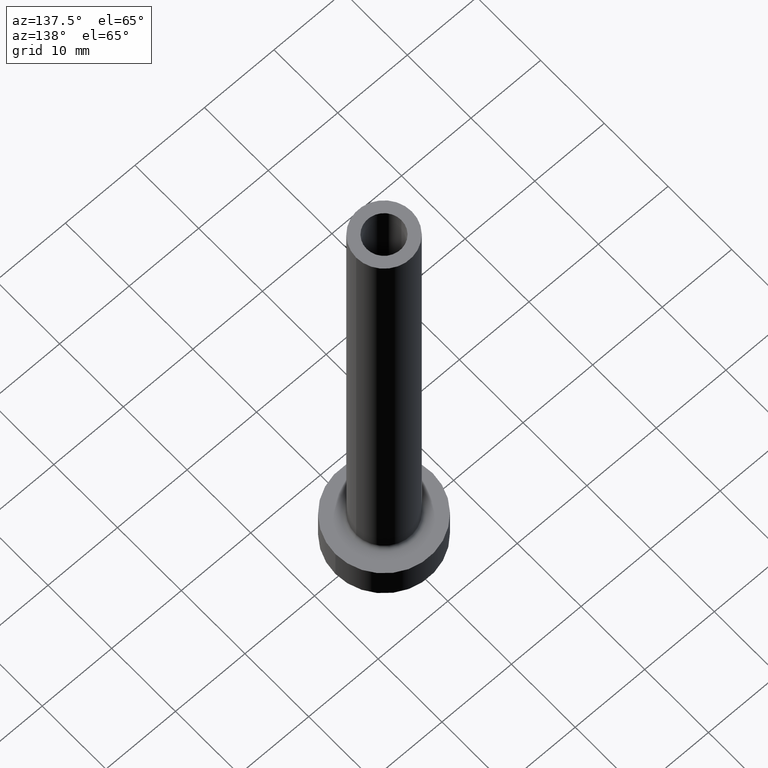
[diagram: clean part render]
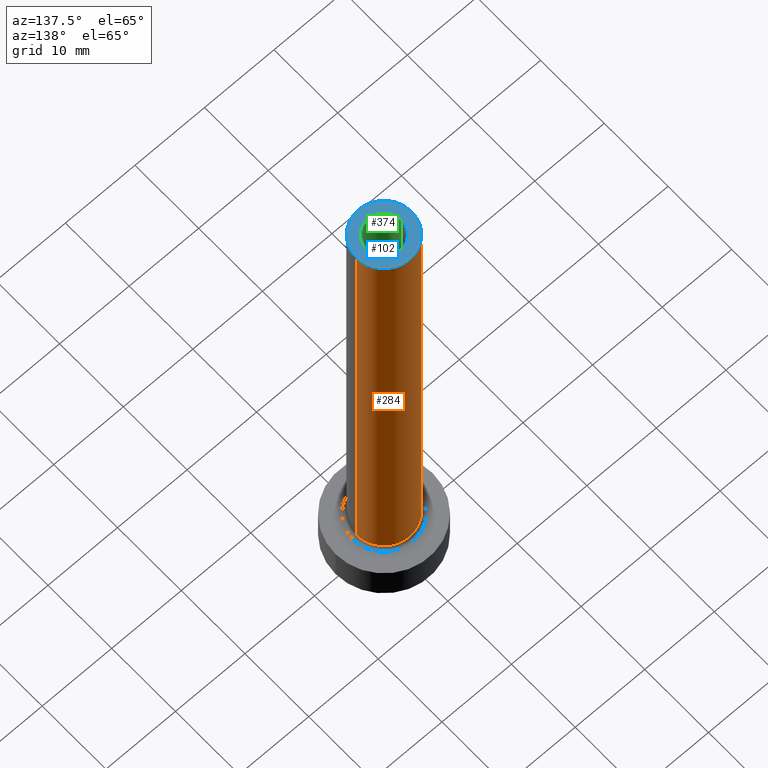
[diagram: same view with three faces highlighted in distinct colors, each labeled with its STEP entity id]
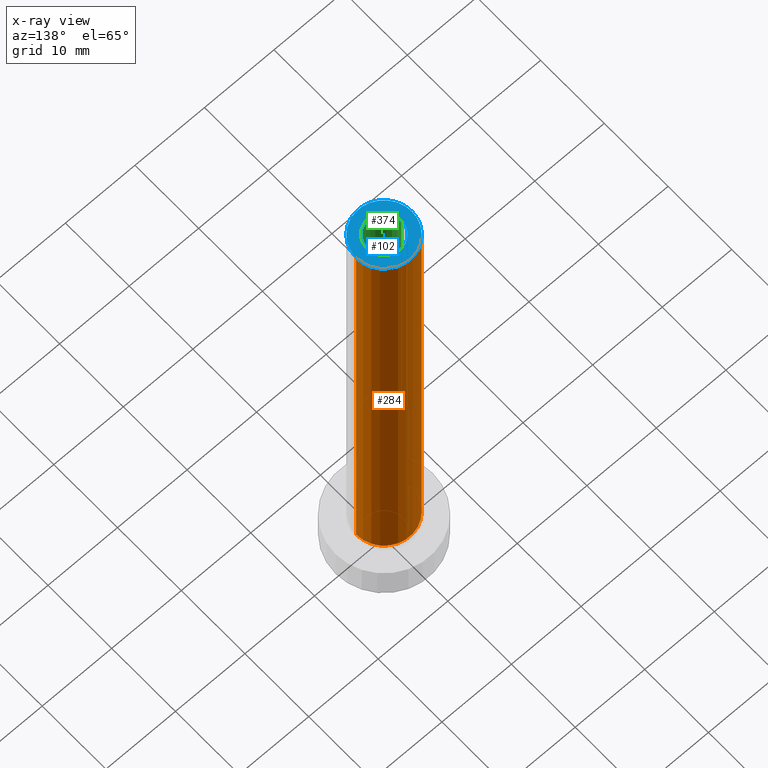
[diagram: x-ray of the same camera — body ghosted, the three highlighted faces saturated]
A machine part, auxiliary view with three faces highlighted in distinct colors.
The next image is the same camera in x-ray (body ghosted, the three faces saturated) — at least one of them is partly hidden behind the body in this view.
Their STEP definitions:

[orange] entity #284 — the highlighted cylindrical surface (partial cylindrical patch) has radius 4 mm, axis along (-0, -0, -1).
#2 = CARTESIAN_POINT ( 'NONE',  ( 4.000000000000000000, 4.898587196589412829E-16, 75.00000000000001421 ) ) ;
#6 = VECTOR ( 'NONE', #14, 1000.000000000000000 ) ;
#14 = DIRECTION ( 'NONE',  ( -0.000000000000000000, -0.000000000000000000, -1.000000000000000000 ) ) ;
#27 = CARTESIAN_POINT ( 'NONE',  ( 0.000000000000000000, 0.000000000000000000, 5.500000000000005329 ) ) ;
#31 = EDGE_CURVE ( 'NONE', #287, #146, #232, .T. ) ;
#36 = CARTESIAN_POINT ( 'NONE',  ( 4.000000000000000000, 4.898587196589412829E-16, 5.500000000000005329 ) ) ;
#61 = DIRECTION ( 'NONE',  ( 0.000000000000000000, 0.000000000000000000, 1.000000000000000000 ) ) ;
#91 = EDGE_LOOP ( 'NONE', ( #113, #230, #128, #411 ) ) ;
#113 = ORIENTED_EDGE ( 'NONE', *, *, #402, .F. ) ;
#114 = DIRECTION ( 'NONE',  ( 0.000000000000000000, 0.000000000000000000, 1.000000000000000000 ) ) ;
#125 = FACE_OUTER_BOUND ( 'NONE', #91, .T. ) ;
#128 = ORIENTED_EDGE ( 'NONE', *, *, #358, .T. ) ;
#136 = DIRECTION ( 'NONE',  ( -1.000000000000000000, 0.000000000000000000, 0.000000000000000000 ) ) ;
#146 = VERTEX_POINT ( 'NONE', #290 ) ;
#169 = DIRECTION ( 'NONE',  ( 1.000000000000000000, 0.000000000000000000, 0.000000000000000000 ) ) ;
#199 = DIRECTION ( 'NONE',  ( -0.000000000000000000, -0.000000000000000000, -1.000000000000000000 ) ) ;
#209 = AXIS2_PLACEMENT_3D ( 'NONE', #217, #114, #367 ) ;
#217 = CARTESIAN_POINT ( 'NONE',  ( 0.000000000000000000, 0.000000000000000000, 75.00000000000001421 ) ) ;
#218 = CIRCLE ( 'NONE', #209, 4.000000000000000000 ) ;
#226 = VERTEX_POINT ( 'NONE', #2 ) ;
#230 = ORIENTED_EDGE ( 'NONE', *, *, #254, .T. ) ;
#232 = LINE ( 'NONE', #412, #6 ) ;
#239 = VERTEX_POINT ( 'NONE', #36 ) ;
#254 = EDGE_CURVE ( 'NONE', #226, #239, #359, .T. ) ;
#266 = CYLINDRICAL_SURFACE ( 'NONE', #375, 4.000000000000000000 ) ;
#278 = AXIS2_PLACEMENT_3D ( 'NONE', #27, #61, #169 ) ;
#284 = ADVANCED_FACE ( 'NONE', ( #125 ), #266, .T. ) ;
#287 = VERTEX_POINT ( 'NONE', #309 ) ;
#290 = CARTESIAN_POINT ( 'NONE',  ( -4.000000000000000000, 0.000000000000000000, 5.500000000000005329 ) ) ;
#309 = CARTESIAN_POINT ( 'NONE',  ( -4.000000000000000000, 0.000000000000000000, 75.00000000000001421 ) ) ;
#319 = CIRCLE ( 'NONE', #278, 4.000000000000000000 ) ;
#335 = DIRECTION ( 'NONE',  ( -0.000000000000000000, -0.000000000000000000, -1.000000000000000000 ) ) ;
#358 = EDGE_CURVE ( 'NONE', #239, #146, #319, .T. ) ;
#359 = LINE ( 'NONE', #400, #406 ) ;
#367 = DIRECTION ( 'NONE',  ( 1.000000000000000000, 0.000000000000000000, 0.000000000000000000 ) ) ;
#375 = AXIS2_PLACEMENT_3D ( 'NONE', #377, #199, #136 ) ;
#377 = CARTESIAN_POINT ( 'NONE',  ( 0.000000000000000000, 0.000000000000000000, 75.00000000000001421 ) ) ;
#400 = CARTESIAN_POINT ( 'NONE',  ( 4.000000000000000000, 4.898587196589412829E-16, 75.00000000000001421 ) ) ;
#402 = EDGE_CURVE ( 'NONE', #226, #287, #218, .T. ) ;
#406 = VECTOR ( 'NONE', #335, 1000.000000000000000 ) ;
#411 = ORIENTED_EDGE ( 'NONE', *, *, #31, .F. ) ;
#412 = CARTESIAN_POINT ( 'NONE',  ( -4.000000000000000000, 0.000000000000000000, 75.00000000000001421 ) ) ;

[blue] entity #102 — the highlighted planar face has unit normal (0, 0, 1).
#2 = CARTESIAN_POINT ( 'NONE',  ( 4.000000000000000000, 4.898587196589412829E-16, 75.00000000000001421 ) ) ;
#12 = ORIENTED_EDGE ( 'NONE', *, *, #212, .F. ) ;
#46 = DIRECTION ( 'NONE',  ( 1.000000000000000000, 0.000000000000000000, -0.000000000000000000 ) ) ;
#63 = EDGE_CURVE ( 'NONE', #304, #342, #195, .T. ) ;
#71 = ORIENTED_EDGE ( 'NONE', *, *, #402, .T. ) ;
#100 = EDGE_LOOP ( 'NONE', ( #348, #71 ) ) ;
#102 = ADVANCED_FACE ( 'NONE', ( #250, #392 ), #208, .T. ) ;
#112 = ORIENTED_EDGE ( 'NONE', *, *, #63, .F. ) ;
#114 = DIRECTION ( 'NONE',  ( 0.000000000000000000, 0.000000000000000000, 1.000000000000000000 ) ) ;
#151 = CIRCLE ( 'NONE', #423, 2.500000000000000000 ) ;
#156 = DIRECTION ( 'NONE',  ( 0.000000000000000000, 0.000000000000000000, 1.000000000000000000 ) ) ;
#172 = AXIS2_PLACEMENT_3D ( 'NONE', #313, #241, #383 ) ;
#189 = AXIS2_PLACEMENT_3D ( 'NONE', #373, #156, #371 ) ;
#195 = CIRCLE ( 'NONE', #172, 2.500000000000000000 ) ;
#208 = PLANE ( 'NONE',  #449 ) ;
#209 = AXIS2_PLACEMENT_3D ( 'NONE', #217, #114, #367 ) ;
#212 = EDGE_CURVE ( 'NONE', #342, #304, #151, .T. ) ;
#217 = CARTESIAN_POINT ( 'NONE',  ( 0.000000000000000000, 0.000000000000000000, 75.00000000000001421 ) ) ;
#218 = CIRCLE ( 'NONE', #209, 4.000000000000000000 ) ;
#225 = CARTESIAN_POINT ( 'NONE',  ( -2.500000000000000000, 0.000000000000000000, 75.00000000000001421 ) ) ;
#226 = VERTEX_POINT ( 'NONE', #2 ) ;
#237 = CIRCLE ( 'NONE', #189, 4.000000000000000000 ) ;
#241 = DIRECTION ( 'NONE',  ( 0.000000000000000000, 0.000000000000000000, 1.000000000000000000 ) ) ;
#243 = DIRECTION ( 'NONE',  ( 1.000000000000000000, 0.000000000000000000, 0.000000000000000000 ) ) ;
#249 = CARTESIAN_POINT ( 'NONE',  ( 0.000000000000000000, 0.000000000000000000, 75.00000000000001421 ) ) ;
#250 = FACE_BOUND ( 'NONE', #416, .T. ) ;
#270 = EDGE_CURVE ( 'NONE', #287, #226, #237, .T. ) ;
#287 = VERTEX_POINT ( 'NONE', #309 ) ;
#304 = VERTEX_POINT ( 'NONE', #225 ) ;
#309 = CARTESIAN_POINT ( 'NONE',  ( -4.000000000000000000, 0.000000000000000000, 75.00000000000001421 ) ) ;
#313 = CARTESIAN_POINT ( 'NONE',  ( 0.000000000000000000, 0.000000000000000000, 75.00000000000001421 ) ) ;
#342 = VERTEX_POINT ( 'NONE', #384 ) ;
#348 = ORIENTED_EDGE ( 'NONE', *, *, #270, .T. ) ;
#353 = CARTESIAN_POINT ( 'NONE',  ( 0.000000000000000000, 0.000000000000000000, 75.00000000000001421 ) ) ;
#367 = DIRECTION ( 'NONE',  ( 1.000000000000000000, 0.000000000000000000, 0.000000000000000000 ) ) ;
#371 = DIRECTION ( 'NONE',  ( 1.000000000000000000, 0.000000000000000000, 0.000000000000000000 ) ) ;
#373 = CARTESIAN_POINT ( 'NONE',  ( 0.000000000000000000, 0.000000000000000000, 75.00000000000001421 ) ) ;
#383 = DIRECTION ( 'NONE',  ( 1.000000000000000000, 0.000000000000000000, 0.000000000000000000 ) ) ;
#384 = CARTESIAN_POINT ( 'NONE',  ( 2.500000000000000000, 3.061616997868382648E-16, 75.00000000000001421 ) ) ;
#392 = FACE_OUTER_BOUND ( 'NONE', #100, .T. ) ;
#402 = EDGE_CURVE ( 'NONE', #226, #287, #218, .T. ) ;
#416 = EDGE_LOOP ( 'NONE', ( #112, #12 ) ) ;
#419 = DIRECTION ( 'NONE',  ( 0.000000000000000000, 0.000000000000000000, 1.000000000000000000 ) ) ;
#423 = AXIS2_PLACEMENT_3D ( 'NONE', #249, #419, #243 ) ;
#449 = AXIS2_PLACEMENT_3D ( 'NONE', #353, #459, #46 ) ;
#459 = DIRECTION ( 'NONE',  ( 0.000000000000000000, 0.000000000000000000, 1.000000000000000000 ) ) ;

[green] entity #374 — the highlighted cylindrical surface (edge-blend (fillet) strip) has radius 2.5 mm, axis along (0, 0, -1).
#15 = EDGE_LOOP ( 'NONE', ( #174, #214, #344, #30 ) ) ;
#30 = ORIENTED_EDGE ( 'NONE', *, *, #257, .F. ) ;
#52 = AXIS2_PLACEMENT_3D ( 'NONE', #285, #425, #111 ) ;
#63 = EDGE_CURVE ( 'NONE', #304, #342, #195, .T. ) ;
#83 = DIRECTION ( 'NONE',  ( -1.000000000000000000, 0.000000000000000000, 0.000000000000000000 ) ) ;
#98 = EDGE_CURVE ( 'NONE', #318, #210, #187, .T. ) ;
#111 = DIRECTION ( 'NONE',  ( 1.000000000000000000, 0.000000000000000000, 0.000000000000000000 ) ) ;
#129 = EDGE_CURVE ( 'NONE', #342, #210, #329, .T. ) ;
#150 = DIRECTION ( 'NONE',  ( 0.000000000000000000, 0.000000000000000000, -1.000000000000000000 ) ) ;
#152 = CARTESIAN_POINT ( 'NONE',  ( 0.000000000000000000, 0.000000000000000000, 75.00000000000001421 ) ) ;
#160 = CARTESIAN_POINT ( 'NONE',  ( -2.500000000000000000, 0.000000000000000000, 30.00000000000001421 ) ) ;
#172 = AXIS2_PLACEMENT_3D ( 'NONE', #313, #241, #383 ) ;
#174 = ORIENTED_EDGE ( 'NONE', *, *, #63, .T. ) ;
#184 = LINE ( 'NONE', #327, #435 ) ;
#187 = CIRCLE ( 'NONE', #52, 2.500000000000000000 ) ;
#195 = CIRCLE ( 'NONE', #172, 2.500000000000000000 ) ;
#210 = VERTEX_POINT ( 'NONE', #286 ) ;
#213 = CARTESIAN_POINT ( 'NONE',  ( 2.500000000000000000, 3.061616997868382648E-16, 75.00000000000001421 ) ) ;
#214 = ORIENTED_EDGE ( 'NONE', *, *, #129, .T. ) ;
#225 = CARTESIAN_POINT ( 'NONE',  ( -2.500000000000000000, 0.000000000000000000, 75.00000000000001421 ) ) ;
#227 = VECTOR ( 'NONE', #361, 1000.000000000000000 ) ;
#241 = DIRECTION ( 'NONE',  ( 0.000000000000000000, 0.000000000000000000, 1.000000000000000000 ) ) ;
#257 = EDGE_CURVE ( 'NONE', #304, #318, #184, .T. ) ;
#260 = DIRECTION ( 'NONE',  ( 0.000000000000000000, 0.000000000000000000, -1.000000000000000000 ) ) ;
#285 = CARTESIAN_POINT ( 'NONE',  ( 0.000000000000000000, 0.000000000000000000, 30.00000000000001421 ) ) ;
#286 = CARTESIAN_POINT ( 'NONE',  ( 2.500000000000000000, 3.061616997868382648E-16, 30.00000000000001421 ) ) ;
#304 = VERTEX_POINT ( 'NONE', #225 ) ;
#313 = CARTESIAN_POINT ( 'NONE',  ( 0.000000000000000000, 0.000000000000000000, 75.00000000000001421 ) ) ;
#318 = VERTEX_POINT ( 'NONE', #160 ) ;
#325 = CYLINDRICAL_SURFACE ( 'NONE', #417, 2.500000000000000000 ) ;
#327 = CARTESIAN_POINT ( 'NONE',  ( -2.500000000000000000, 0.000000000000000000, 75.00000000000001421 ) ) ;
#329 = LINE ( 'NONE', #213, #227 ) ;
#342 = VERTEX_POINT ( 'NONE', #384 ) ;
#344 = ORIENTED_EDGE ( 'NONE', *, *, #98, .F. ) ;
#361 = DIRECTION ( 'NONE',  ( 0.000000000000000000, 0.000000000000000000, -1.000000000000000000 ) ) ;
#362 = FACE_OUTER_BOUND ( 'NONE', #15, .T. ) ;
#374 = ADVANCED_FACE ( 'NONE', ( #362 ), #325, .F. ) ;
#383 = DIRECTION ( 'NONE',  ( 1.000000000000000000, 0.000000000000000000, 0.000000000000000000 ) ) ;
#384 = CARTESIAN_POINT ( 'NONE',  ( 2.500000000000000000, 3.061616997868382648E-16, 75.00000000000001421 ) ) ;
#417 = AXIS2_PLACEMENT_3D ( 'NONE', #152, #150, #83 ) ;
#425 = DIRECTION ( 'NONE',  ( 0.000000000000000000, 0.000000000000000000, 1.000000000000000000 ) ) ;
#435 = VECTOR ( 'NONE', #260, 1000.000000000000000 ) ;